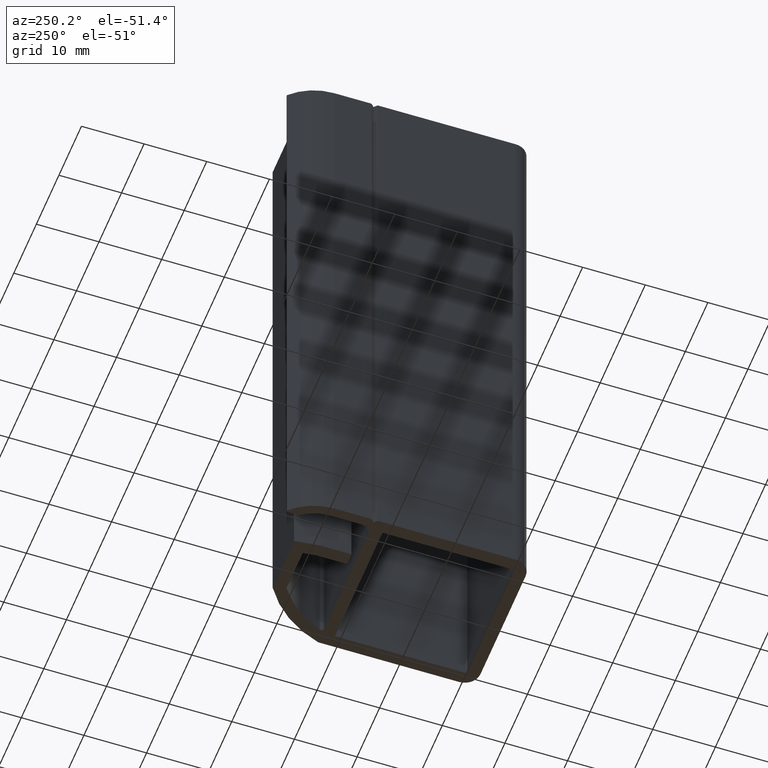
[diagram: clean part render]
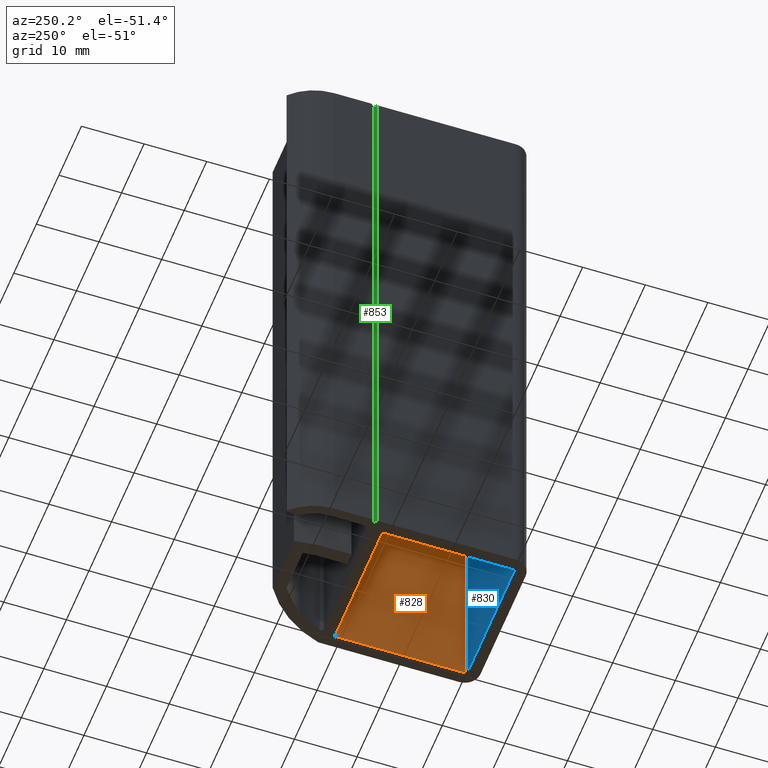
[diagram: same view with three faces highlighted in distinct colors, each labeled with its STEP entity id]
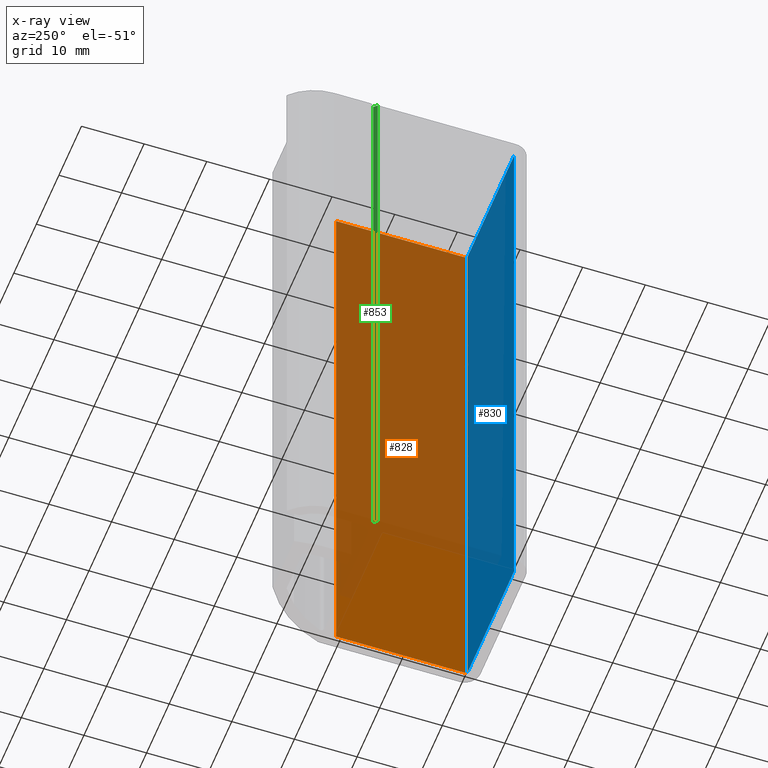
[diagram: x-ray of the same camera — body ghosted, the three highlighted faces saturated]
A machine part, auxiliary view with three faces highlighted in distinct colors.
The next image is the same camera in x-ray (body ghosted, the three faces saturated) — at least one of them is partly hidden behind the body in this view.
Their STEP definitions:

[orange] entity #828 — the highlighted planar face has unit normal (1, -0, 0).
#19=PLANE('',#898);
#45=FACE_OUTER_BOUND('',#89,.T.);
#89=EDGE_LOOP('',(#570,#571,#572,#573));
#181=LINE('',#1263,#265);
#182=LINE('',#1267,#266);
#183=LINE('',#1269,#267);
#184=LINE('',#1270,#268);
#265=VECTOR('',#1004,10.);
#266=VECTOR('',#1009,10.);
#267=VECTOR('',#1010,10.);
#268=VECTOR('',#1011,10.);
#350=VERTEX_POINT('',#1260);
#351=VERTEX_POINT('',#1262);
#352=VERTEX_POINT('',#1266);
#353=VERTEX_POINT('',#1268);
#438=EDGE_CURVE('',#350,#351,#181,.T.);
#440=EDGE_CURVE('',#352,#350,#182,.T.);
#441=EDGE_CURVE('',#352,#353,#183,.T.);
#442=EDGE_CURVE('',#351,#353,#184,.T.);
#570=ORIENTED_EDGE('',*,*,#438,.F.);
#571=ORIENTED_EDGE('',*,*,#440,.F.);
#572=ORIENTED_EDGE('',*,*,#441,.T.);
#573=ORIENTED_EDGE('',*,*,#442,.F.);
#828=ADVANCED_FACE('',(#45),#19,.F.);
#898=AXIS2_PLACEMENT_3D('',#1265,#1007,#1008);
#1004=DIRECTION('',(0.,0.,1.));
#1007=DIRECTION('center_axis',(1.,-3.11076982745216E-15,0.));
#1008=DIRECTION('ref_axis',(3.11076982745216E-15,1.,0.));
#1009=DIRECTION('',(3.11076982745216E-15,1.,0.));
#1010=DIRECTION('',(0.,0.,1.));
#1011=DIRECTION('',(-3.11076982745216E-15,-1.,0.));
#1260=CARTESIAN_POINT('',(10.55,10.3499999999999,-50.));
#1262=CARTESIAN_POINT('',(10.55,10.3499999999999,50.));
#1263=CARTESIAN_POINT('',(10.55,10.3499999999999,0.));
#1265=CARTESIAN_POINT('Origin',(10.5499999999999,-10.35,0.));
#1266=CARTESIAN_POINT('',(10.5499999999999,-10.35,-50.));
#1267=CARTESIAN_POINT('',(10.5499999999999,-0.945041992346368,-50.));
#1268=CARTESIAN_POINT('',(10.5499999999999,-10.35,50.));
#1269=CARTESIAN_POINT('',(10.5499999999999,-10.35,0.));
#1270=CARTESIAN_POINT('',(10.5499999999999,-0.945041992346368,50.));

[blue] entity #830 — the highlighted planar face has unit normal (-0, -1, 0).
#20=PLANE('',#902);
#47=FACE_OUTER_BOUND('',#91,.T.);
#91=EDGE_LOOP('',(#578,#579,#580,#581));
#172=LINE('',#1235,#256);
#185=LINE('',#1275,#269);
#186=LINE('',#1278,#270);
#187=LINE('',#1279,#271);
#256=VECTOR('',#977,10.);
#269=VECTOR('',#1016,10.);
#270=VECTOR('',#1021,10.);
#271=VECTOR('',#1022,10.);
#340=VERTEX_POINT('',#1233);
#341=VERTEX_POINT('',#1234);
#354=VERTEX_POINT('',#1272);
#355=VERTEX_POINT('',#1274);
#424=EDGE_CURVE('',#340,#341,#172,.T.);
#444=EDGE_CURVE('',#354,#355,#185,.T.);
#446=EDGE_CURVE('',#341,#354,#186,.T.);
#447=EDGE_CURVE('',#355,#340,#187,.T.);
#578=ORIENTED_EDGE('',*,*,#444,.F.);
#579=ORIENTED_EDGE('',*,*,#446,.F.);
#580=ORIENTED_EDGE('',*,*,#424,.F.);
#581=ORIENTED_EDGE('',*,*,#447,.F.);
#830=ADVANCED_FACE('',(#47),#20,.F.);
#902=AXIS2_PLACEMENT_3D('',#1277,#1019,#1020);
#977=DIRECTION('',(0.,0.,-1.));
#1016=DIRECTION('',(0.,0.,1.));
#1019=DIRECTION('center_axis',(-3.0035019023676E-15,-1.,0.));
#1020=DIRECTION('ref_axis',(1.,-3.0035019023676E-15,0.));
#1021=DIRECTION('',(1.,-3.0035019023676E-15,0.));
#1022=DIRECTION('',(-1.,3.0035019023676E-15,0.));
#1233=CARTESIAN_POINT('',(-10.3499999999999,-10.5499999999999,50.));
#1234=CARTESIAN_POINT('',(-10.3499999999999,-10.5499999999999,-50.));
#1235=CARTESIAN_POINT('',(-10.3499999999999,-10.5499999999999,0.));
#1272=CARTESIAN_POINT('',(10.3499999999999,-10.55,-50.));
#1274=CARTESIAN_POINT('',(10.3499999999999,-10.55,50.));
#1275=CARTESIAN_POINT('',(10.3499999999999,-10.55,0.));
#1277=CARTESIAN_POINT('Origin',(-10.3499999999999,-10.5499999999999,0.));
#1278=CARTESIAN_POINT('',(-5.75712146790531,-10.5499999999999,-50.));
#1279=CARTESIAN_POINT('',(-5.75712146790531,-10.5499999999999,50.));

[green] entity #853 — the highlighted planar face has unit normal (-0.7071, 0.7071, 0).
#32=PLANE('',#953);
#70=FACE_OUTER_BOUND('',#115,.T.);
#115=EDGE_LOOP('',(#708,#709,#710,#711));
#199=LINE('',#1327,#283);
#236=LINE('',#1434,#320);
#237=LINE('',#1437,#321);
#238=LINE('',#1438,#322);
#283=VECTOR('',#1058,10.);
#320=VECTOR('',#1171,10.);
#321=VECTOR('',#1174,10.);
#322=VECTOR('',#1175,10.);
#378=VERTEX_POINT('',#1324);
#379=VERTEX_POINT('',#1326);
#411=VERTEX_POINT('',#1432);
#412=VERTEX_POINT('',#1436);
#470=EDGE_CURVE('',#378,#379,#199,.T.);
#524=EDGE_CURVE('',#378,#411,#236,.T.);
#525=EDGE_CURVE('',#412,#411,#237,.T.);
#526=EDGE_CURVE('',#379,#412,#238,.T.);
#708=ORIENTED_EDGE('',*,*,#524,.T.);
#709=ORIENTED_EDGE('',*,*,#525,.F.);
#710=ORIENTED_EDGE('',*,*,#526,.F.);
#711=ORIENTED_EDGE('',*,*,#470,.F.);
#853=ADVANCED_FACE('',(#70),#32,.T.);
#953=AXIS2_PLACEMENT_3D('',#1435,#1172,#1173);
#1058=DIRECTION('',(0.70710678118651,0.707106781186585,0.));
#1171=DIRECTION('',(0.,0.,1.));
#1172=DIRECTION('center_axis',(-0.707106781186585,0.70710678118651,0.));
#1173=DIRECTION('ref_axis',(-0.70710678118651,-0.707106781186585,0.));
#1174=DIRECTION('',(-0.70710678118651,-0.707106781186585,0.));
#1175=DIRECTION('',(0.,0.,1.));
#1324=CARTESIAN_POINT('',(-12.4999999999994,11.9999999999866,-50.));
#1326=CARTESIAN_POINT('',(-12.0000000000003,12.4999999999858,-50.));
#1327=CARTESIAN_POINT('',(-12.0000000000003,12.4999999999858,-50.));
#1432=CARTESIAN_POINT('',(-12.4999999999994,11.9999999999866,50.));
#1434=CARTESIAN_POINT('',(-12.4999999999994,11.9999999999866,0.));
#1435=CARTESIAN_POINT('Origin',(-12.0000000000003,12.4999999999858,0.));
#1436=CARTESIAN_POINT('',(-12.0000000000003,12.4999999999858,50.));
#1437=CARTESIAN_POINT('',(-12.0000000000003,12.4999999999858,50.));
#1438=CARTESIAN_POINT('',(-12.0000000000003,12.4999999999858,0.));